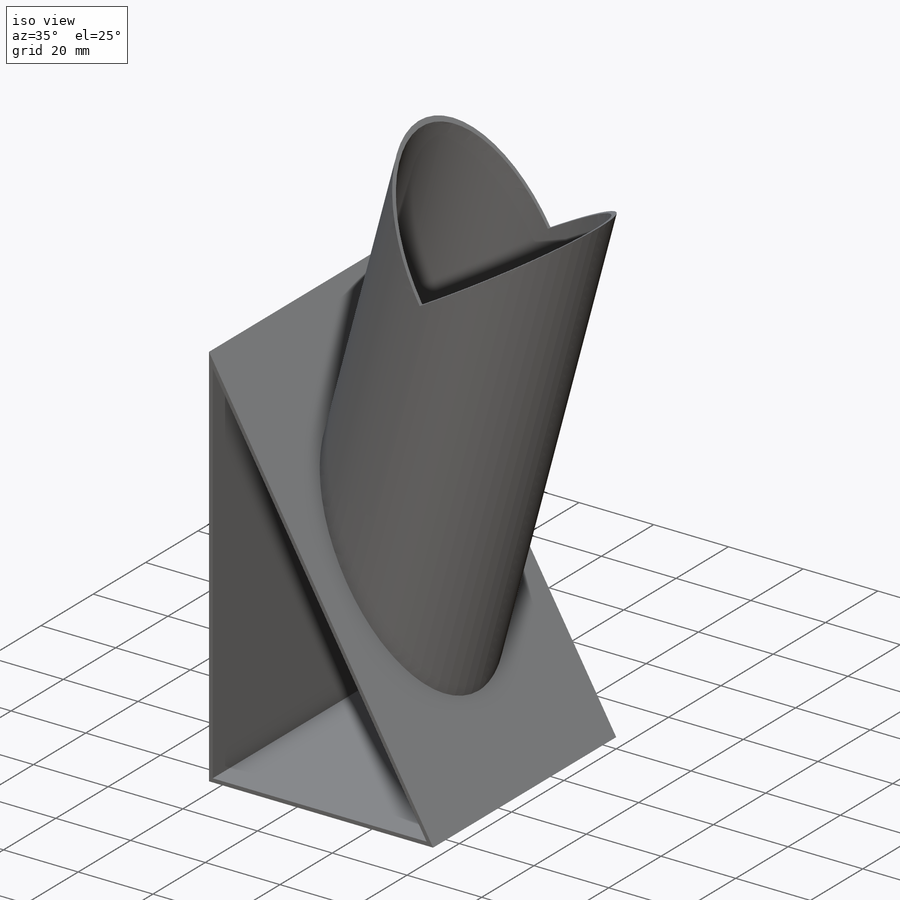
[diagram: iso view]
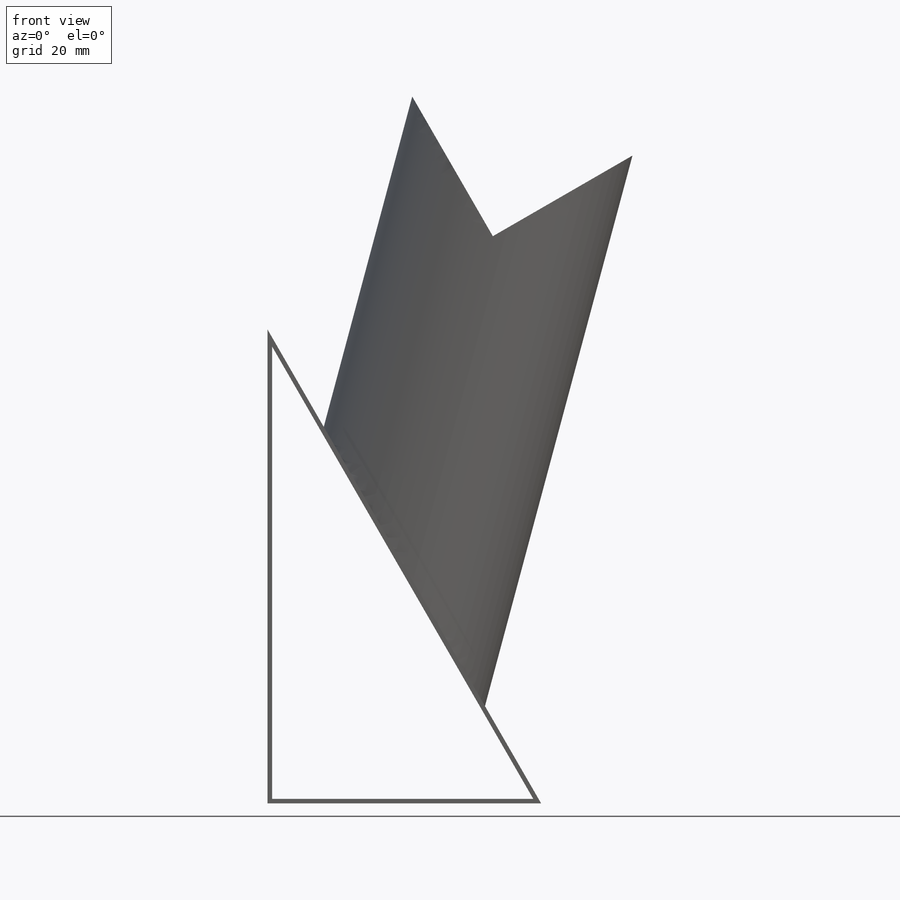
[diagram: front view]
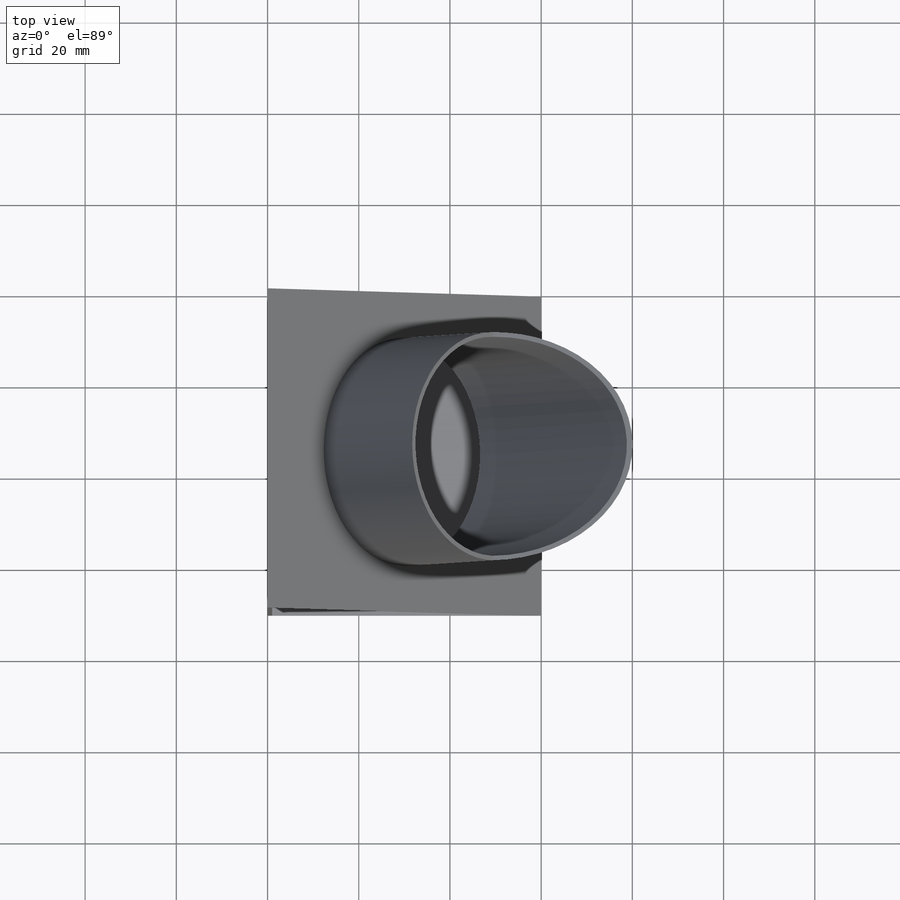
[diagram: top view]
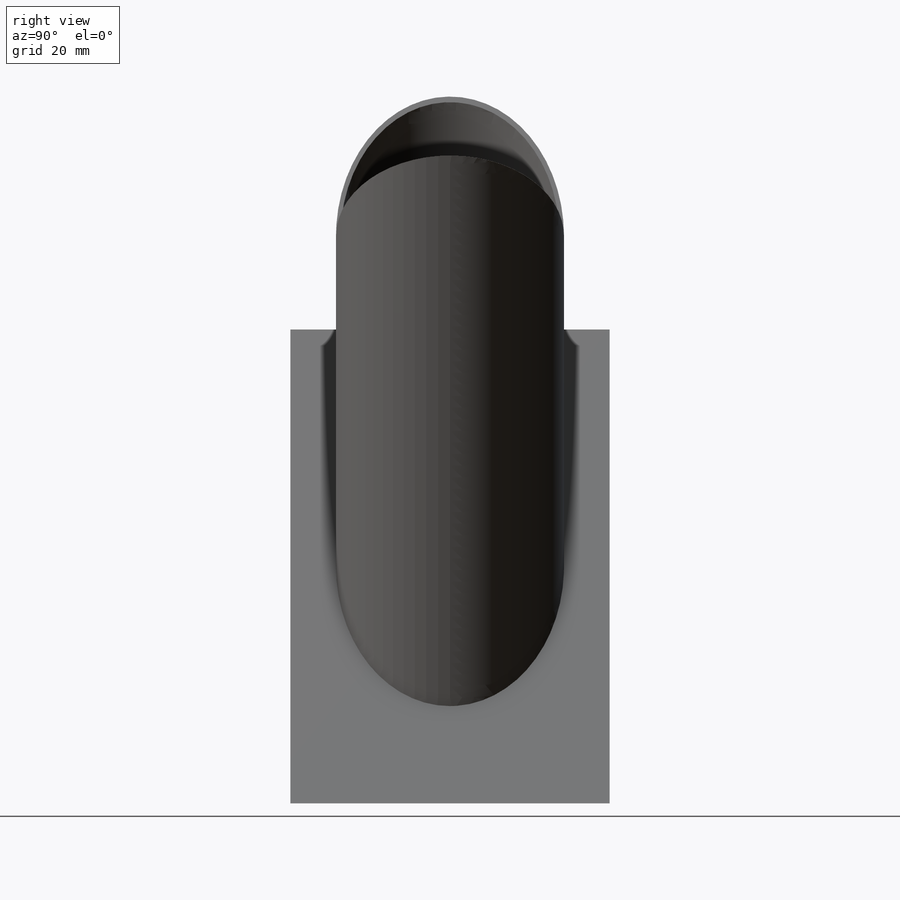
[diagram: right view]
SOLIDWORKS PART (.sldprt)
format: sldprt  version: not decoded by parser v0  size: 413,696 bytes
history: native  units: mm
features: sketch x4, cut_extrude x2, material x1, extrude x1, plane x1, revolve x1, shell x1 (+14 scaffold rows collapsed)
feature tree (25):
  scaffold x14  (default folders/planes/origin — collapsed)
  material  "Material <not specified>"
  sketch  "Sketch1"  dims[c1.D1=60.0mm c1.D2=~84.025765mm c2.D2=60.0deg]
  extrude  "Extrude1"  Depth=70mm
  plane  "Plane1"  Offset=35mm
  sketch  "Sketch3"  dims[c1.D1=~109.445906mm c2.D1=45.0deg c3.D1=103.0mm c3.D2=25.0mm]
  revolve  "Revolve2"  Angle=360deg
  sketch  "Sketch4"
  cut_extrude  "Cut-Extrude1"  Depth=5mm
  sketch  "Sketch5"
  cut_extrude  "Cut-Extrude2"  Depth=50mm
  shell  "Shell1"  Thickness=1mm
decode coverage: 7 of 9 modeling features carry decoded parameters
note: ~ marks probable driven/reference dimensions
note: suppression state not decoded; provenance and decode notes live in map.json
